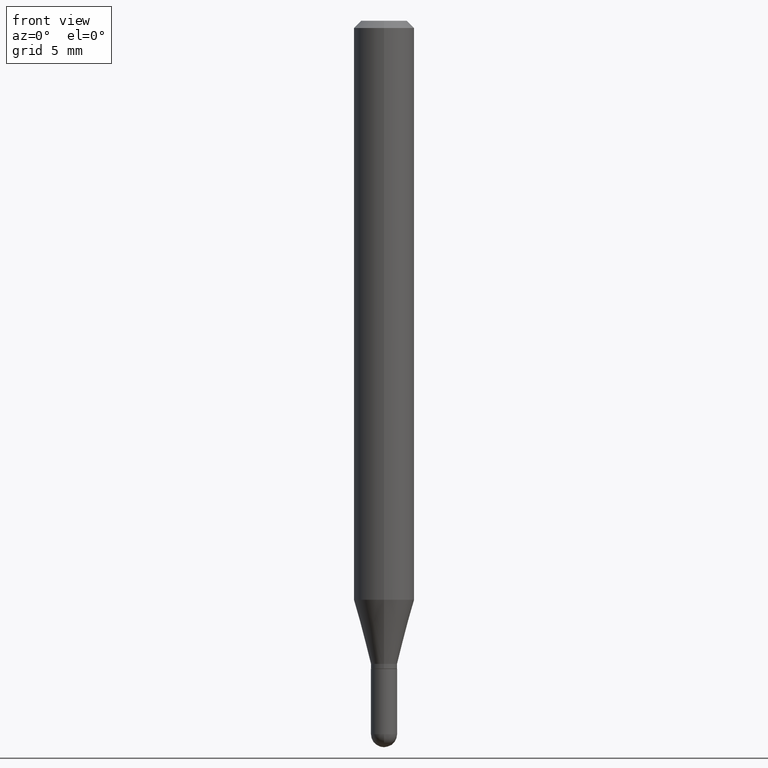
[diagram: clean part render]
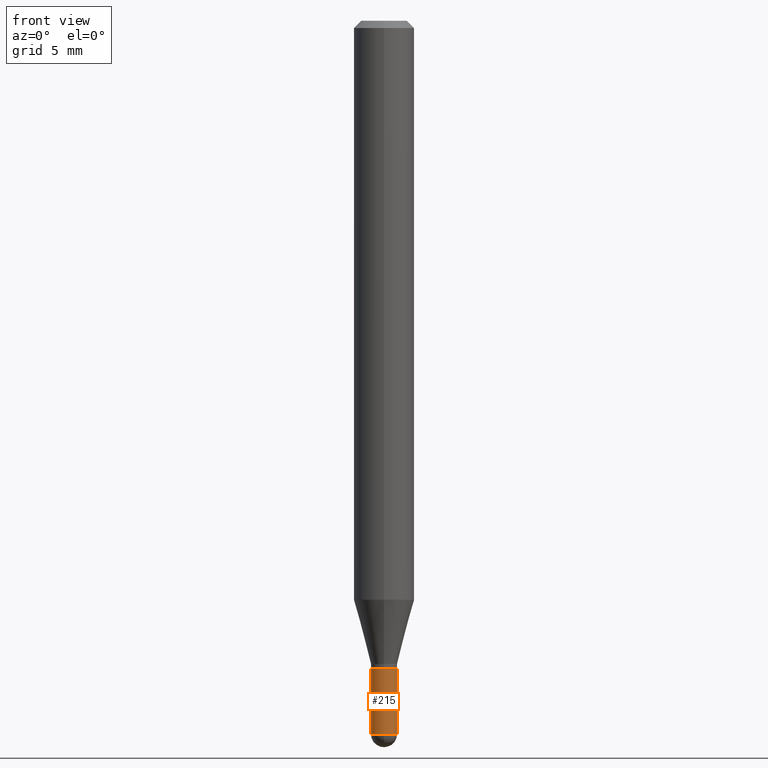
[diagram: same view with one face highlighted and labeled with its STEP entity id]
A machine part, front view. The second image highlights one B-rep face of the part: STEP entity #215.
In plain terms, the highlighted cylindrical surface (edge-blend (fillet) strip) has radius 0.6858 mm, axis along (-0, 0, 1).
Its self-contained STEP definition (entity closure, byte-faithful):
#2 = EDGE_CURVE ( 'NONE', #106, #34, #147, .T. ) ;
#6 = VECTOR ( 'NONE', #388, 39.37007874015748143 ) ;
#13 = VECTOR ( 'NONE', #476, 39.37007874015748143 ) ;
#32 = VERTEX_POINT ( 'NONE', #506 ) ;
#34 = VERTEX_POINT ( 'NONE', #190 ) ;
#46 = LINE ( 'NONE', #276, #6 ) ;
#56 = CARTESIAN_POINT ( 'NONE',  ( 3.602175551510707068E-29, -5.142952012115954617E-15, -1.473000000000000309 ) ) ;
#74 = EDGE_LOOP ( 'NONE', ( #384, #350, #275, #306, #140 ) ) ;
#81 = EDGE_CURVE ( 'NONE', #437, #106, #46, .T. ) ;
#93 = EDGE_CURVE ( 'NONE', #196, #34, #103, .T. ) ;
#103 = LINE ( 'NONE', #433, #13 ) ;
#106 = VERTEX_POINT ( 'NONE', #282 ) ;
#119 = EDGE_CURVE ( 'NONE', #437, #32, #131, .T. ) ;
#123 = DIRECTION ( 'NONE',  ( 1.000000000000000000, -6.982962677686259611E-15, 0.000000000000000000 ) ) ;
#127 = CARTESIAN_POINT ( 'NONE',  ( 3.602175551510707068E-29, -5.142952012115954617E-15, -1.473000000000000309 ) ) ;
#131 = CIRCLE ( 'NONE', #301, 0.02700000000000000316 ) ;
#138 = DIRECTION ( 'NONE',  ( 1.000000000000000000, -6.982962677686267499E-15, 4.876176775795935232E-29 ) ) ;
#140 = ORIENTED_EDGE ( 'NONE', *, *, #2, .F. ) ;
#147 = CIRCLE ( 'NONE', #487, 0.02699999999999999969 ) ;
#160 = EDGE_CURVE ( 'NONE', #32, #196, #448, .T. ) ;
#178 = FACE_OUTER_BOUND ( 'NONE', #74, .T. ) ;
#190 = CARTESIAN_POINT ( 'NONE',  ( 0.02699999999999999969, -4.860142023669657629E-15, -1.338000000000000078 ) ) ;
#196 = VERTEX_POINT ( 'NONE', #362 ) ;
#212 = CARTESIAN_POINT ( 'NONE',  ( 0.000000000000000000, 0.000000000000000000, 0.000000000000000000 ) ) ;
#215 = ADVANCED_FACE ( 'NONE', ( #178 ), #329, .T. ) ;
#239 = DIRECTION ( 'NONE',  ( -2.445468806185136597E-29, 3.491481338843145583E-15, 1.000000000000000000 ) ) ;
#275 = ORIENTED_EDGE ( 'NONE', *, *, #160, .T. ) ;
#276 = CARTESIAN_POINT ( 'NONE',  ( -0.02700000000000000316, 1.918465386552270727E-16, -1.328112474368824641E-30 ) ) ;
#282 = CARTESIAN_POINT ( 'NONE',  ( -0.02699999999999999969, -4.715430483088814160E-15, -1.338000000000000078 ) ) ;
#301 = AXIS2_PLACEMENT_3D ( 'NONE', #127, #315, #123 ) ;
#306 = ORIENTED_EDGE ( 'NONE', *, *, #93, .T. ) ;
#308 = CARTESIAN_POINT ( 'NONE',  ( 3.272037262675712888E-29, -4.671602031372128143E-15, -1.338000000000000078 ) ) ;
#315 = DIRECTION ( 'NONE',  ( -2.445468806185136597E-29, 3.491481338843145583E-15, 1.000000000000000000 ) ) ;
#329 = CYLINDRICAL_SURFACE ( 'NONE', #436, 0.02700000000000000316 ) ;
#350 = ORIENTED_EDGE ( 'NONE', *, *, #119, .T. ) ;
#362 = CARTESIAN_POINT ( 'NONE',  ( 0.02700000000000000316, -5.095817014041570866E-15, -1.473000000000000309 ) ) ;
#384 = ORIENTED_EDGE ( 'NONE', *, *, #81, .F. ) ;
#388 = DIRECTION ( 'NONE',  ( -2.445468806185136877E-29, 3.491481338843145188E-15, 1.000000000000000000 ) ) ;
#399 = DIRECTION ( 'NONE',  ( 1.000000000000000000, -6.982962677686259611E-15, 0.000000000000000000 ) ) ;
#408 = CARTESIAN_POINT ( 'NONE',  ( -0.02700000000000000316, -4.715430483088814160E-15, -1.473000000000000309 ) ) ;
#428 = AXIS2_PLACEMENT_3D ( 'NONE', #56, #239, #399 ) ;
#430 = DIRECTION ( 'NONE',  ( 1.000000000000000000, -6.982962677686261189E-15, 0.000000000000000000 ) ) ;
#433 = CARTESIAN_POINT ( 'NONE',  ( 0.02700000000000000316, -1.885399922975292387E-16, 1.316567729464902685E-30 ) ) ;
#436 = AXIS2_PLACEMENT_3D ( 'NONE', #212, #496, #138 ) ;
#437 = VERTEX_POINT ( 'NONE', #408 ) ;
#448 = CIRCLE ( 'NONE', #428, 0.02700000000000000316 ) ;
#465 = DIRECTION ( 'NONE',  ( -2.445468806185136597E-29, 3.491481338843145583E-15, 1.000000000000000000 ) ) ;
#476 = DIRECTION ( 'NONE',  ( -2.445468806185136877E-29, 3.491481338843145188E-15, 1.000000000000000000 ) ) ;
#487 = AXIS2_PLACEMENT_3D ( 'NONE', #308, #465, #430 ) ;
#496 = DIRECTION ( 'NONE',  ( -2.445468806185136597E-29, 3.491481338843145583E-15, 1.000000000000000000 ) ) ;
#506 = CARTESIAN_POINT ( 'NONE',  ( -1.918465386551910562E-16, -0.02700000000000515182, -1.473000000000000309 ) ) ;